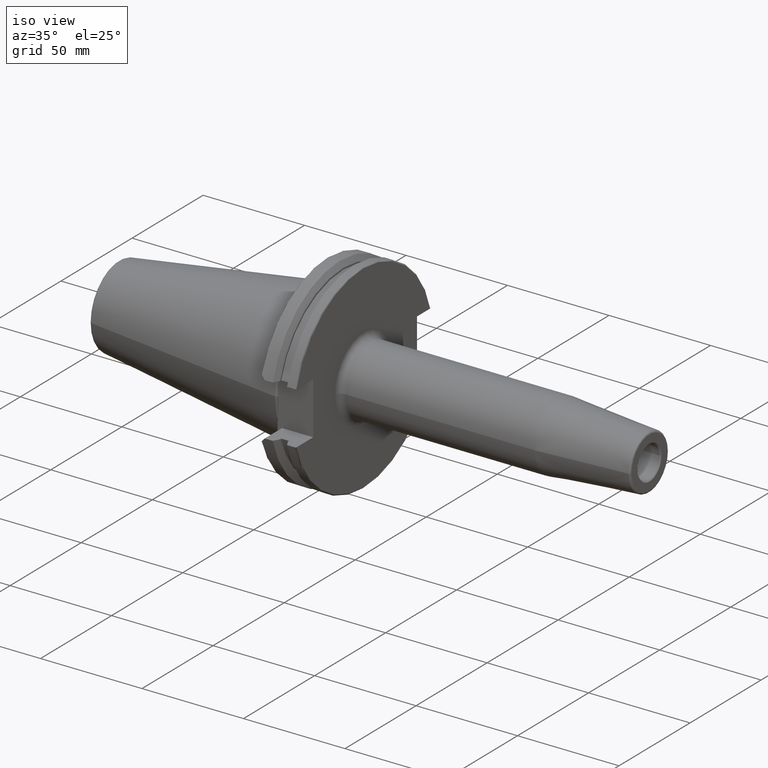
[diagram: clean part render]
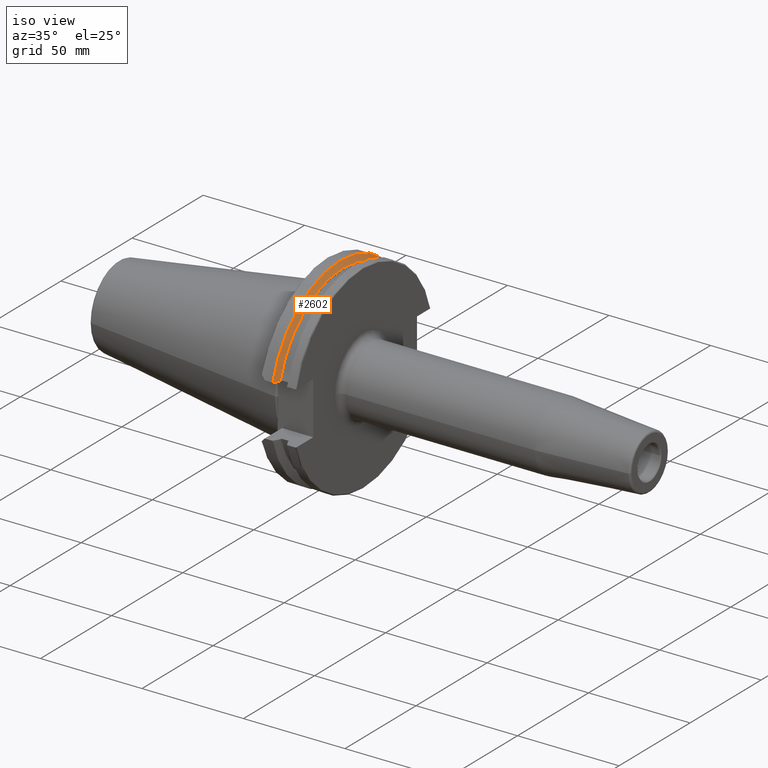
[diagram: same view with one face highlighted and labeled with its STEP entity id]
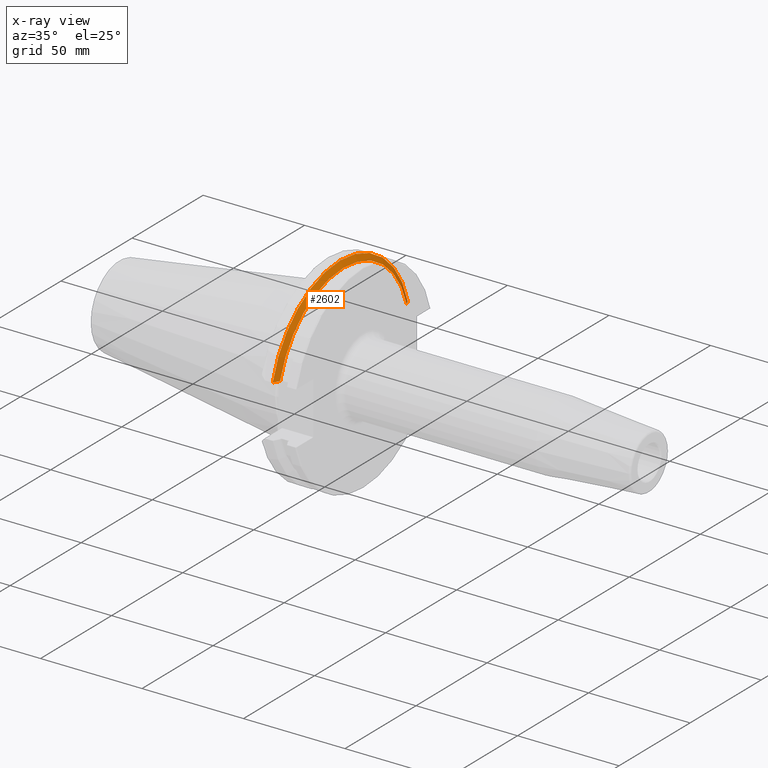
[diagram: x-ray of the same camera — body ghosted, the highlighted face saturated]
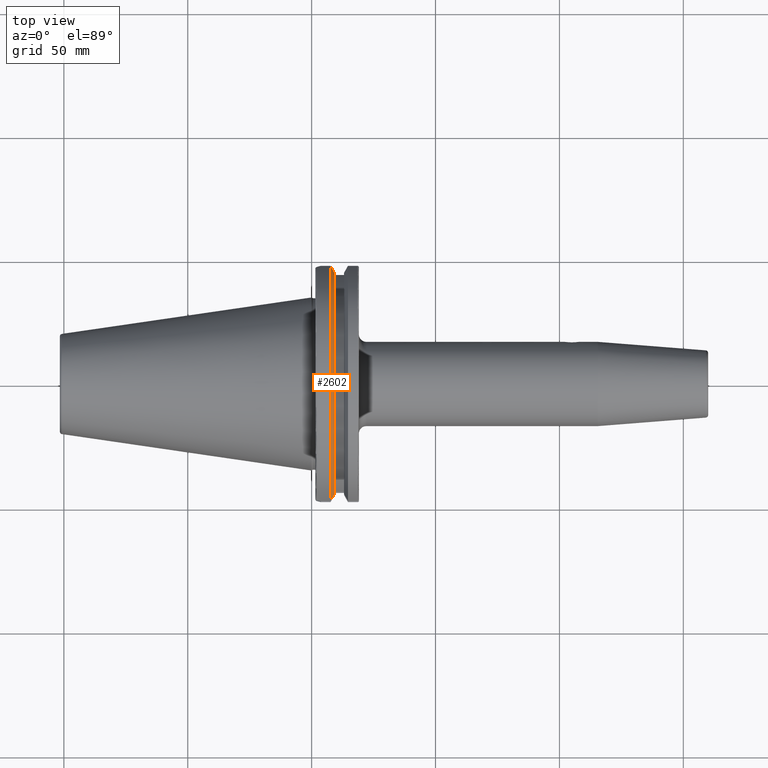
[diagram: same view with one face highlighted and labeled with its STEP entity id]
A machine part, iso view. The second image highlights one B-rep face of the part: STEP entity #2602.
The next image is the same camera in x-ray: the body ghosted, the highlighted face saturated — about 0% of this face is hidden behind the body in this view.
A second angle (top view) of the same face is appended — the face is thin or edge-on in the first view.
In plain terms, the highlighted conical surface has half-angle 60 deg.
Its self-contained STEP definition (entity closure, byte-faithful):
#773=CARTESIAN_POINT('',(9.2191E0,-4.457911479736E1,1.295E1));
#774=CARTESIAN_POINT('',(9.043798696231E0,-4.489529739839E1,1.295E1));
#775=CARTESIAN_POINT('',(8.690717816860E0,-4.553160900339E1,1.295E1));
#776=CARTESIAN_POINT('',(8.153696086217E0,-4.649788692254E1,1.295E1));
#777=CARTESIAN_POINT('',(7.790716479221E0,-4.715002394866E1,1.295E1));
#778=CARTESIAN_POINT('',(7.607990965951E0,-4.747807553229E1,1.295E1));
#780=CARTESIAN_POINT('',(7.607990965951E0,0.E0,0.E0));
#781=DIRECTION('',(-1.E0,0.E0,0.E0));
#782=DIRECTION('',(0.E0,-9.647564243290E-1,2.631445262891E-1));
#783=AXIS2_PLACEMENT_3D('',#780,#781,#782);
#785=CARTESIAN_POINT('',(7.607990965951E0,4.747807553229E1,1.295E1));
#786=CARTESIAN_POINT('',(7.790677509810E0,4.715009391139E1,1.295E1));
#787=CARTESIAN_POINT('',(8.153605257315E0,4.649805019299E1,1.295E1));
#788=CARTESIAN_POINT('',(8.690628266502E0,4.553177029475E1,1.295E1));
#789=CARTESIAN_POINT('',(9.043760364354E0,4.489536653577E1,1.295E1));
#790=CARTESIAN_POINT('',(9.2191E0,4.457911479736E1,1.295E1));
#792=CARTESIAN_POINT('',(9.2191E0,0.E0,0.E0));
#793=DIRECTION('',(1.E0,0.E0,0.E0));
#794=DIRECTION('',(0.E0,9.603019387269E-1,2.789626972864E-1));
#795=AXIS2_PLACEMENT_3D('',#792,#793,#794);
#1407=VERTEX_POINT('',#785);
#1408=VERTEX_POINT('',#790);
#1432=VERTEX_POINT('',#773);
#1433=VERTEX_POINT('',#778);
#2591=CARTESIAN_POINT('',(8.413545482976E0,0.E0,0.E0));
#2592=DIRECTION('',(-1.E0,0.E0,0.E0));
#2593=DIRECTION('',(0.E0,1.E0,0.E0));
#2594=AXIS2_PLACEMENT_3D('',#2591,#2592,#2593);
#2595=CONICAL_SURFACE('',#2594,4.781723864825E1,6.E1);
#2596=ORIENTED_EDGE('',*,*,#2119,.T.);
#2597=ORIENTED_EDGE('',*,*,#2195,.T.);
#2598=ORIENTED_EDGE('',*,*,#2493,.T.);
#2599=ORIENTED_EDGE('',*,*,#2557,.T.);
#2600=EDGE_LOOP('',(#2596,#2597,#2598,#2599));
#2601=FACE_OUTER_BOUND('',#2600,.F.);
#2602=ADVANCED_FACE('',(#2601),#2595,.T.);
#779=B_SPLINE_CURVE_WITH_KNOTS('',3,(#773,#774,#775,#776,#777,#778),
.UNSPECIFIED.,.F.,.F.,(4,1,1,4),(0.E0,3.333333333333E-1,6.666666666667E-1,1.E0),
.UNSPECIFIED.);
#784=CIRCLE('',#783,4.92125E1);
#791=B_SPLINE_CURVE_WITH_KNOTS('',3,(#785,#786,#787,#788,#789,#790),
.UNSPECIFIED.,.F.,.F.,(4,1,1,4),(0.E0,3.333333333333E-1,6.666666666667E-1,1.E0),
.UNSPECIFIED.);
#796=CIRCLE('',#795,4.642197729649E1);
#2119=EDGE_CURVE('',#1432,#1433,#779,.T.);
#2195=EDGE_CURVE('',#1433,#1407,#784,.T.);
#2493=EDGE_CURVE('',#1407,#1408,#791,.T.);
#2557=EDGE_CURVE('',#1408,#1432,#796,.T.);